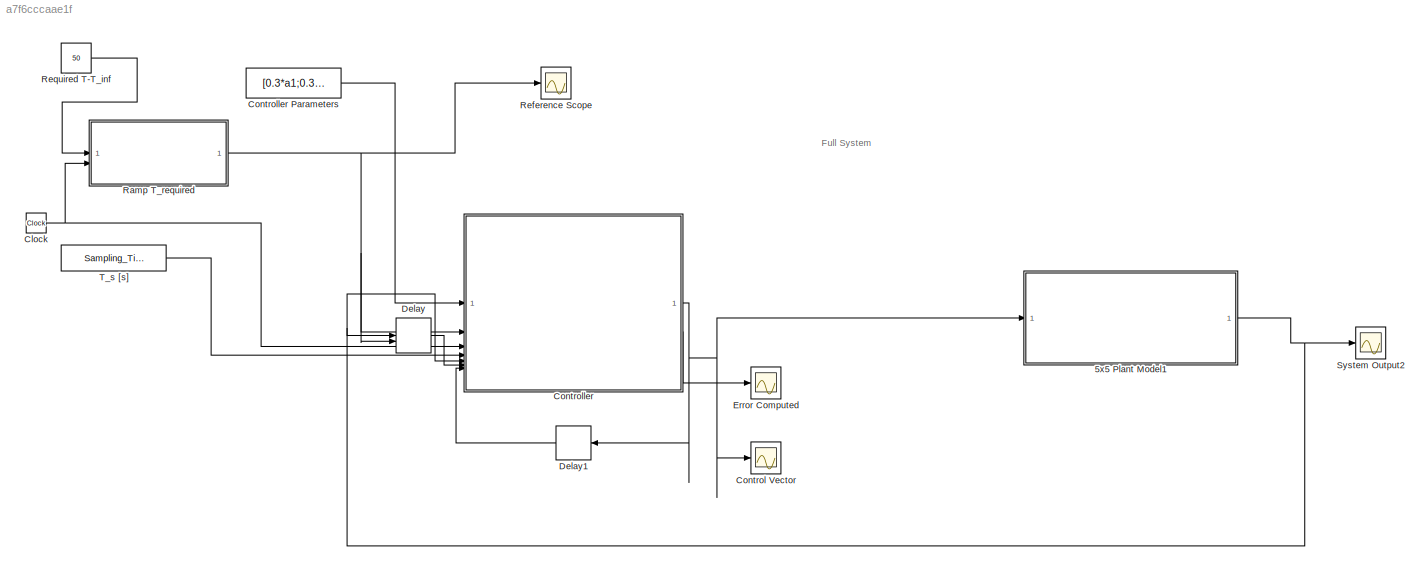
MODEL slx_a7f6cccaae1f
KIND model
CONFIG AbsTol = auto
CONFIG EnableMultiTasking = off
CONFIG FixedStep = auto
CONFIG InitFcn = Sampling_Time = 0.02;\n\n% Find Controller\nA_T= 3.6174;\ntau = 1.2889;\nTs = Sampling_Time;\nKt = A_T * (1-exp(-Ts/tau));\npoles = [-0.9180   -0.7439]; % 2x2\npoles = [-0.5844   -0.9007]; % more aggressive\npoles = [-0.7161   -0.8]; % 0.02 Ts aggro\npoles = [-0.6161   -0.7]; % 0.02 Ts aggro\na1 = (poles(1)+poles(2)+1+exp(-Ts/tau))/Kt;\na0 = (poles(1)*poles(2)-exp(-Ts/tau))/Kt;\na1 = a1(1);\na0 = a0(1);
CONFIG MaxStep = auto
CONFIG MinStep = auto
CONFIG RelTol = 1e-3
CONFIG SampleTimeConstraint = Unconstrained
CONFIG SolverName = VariableStepAuto
CONFIG StartTime = 0.0
CONFIG StopFcn = datloc = out.varout{1}.Values;\n\nt = datloc.Time;\nT = datloc.Data;\nwritematrix([t T], "temp_out.csv");\ncu = out.cuout{1}.Values;\nwritematrix([cu.Time cu.Data], "temp_control.csv");
CONFIG StopTime = 5
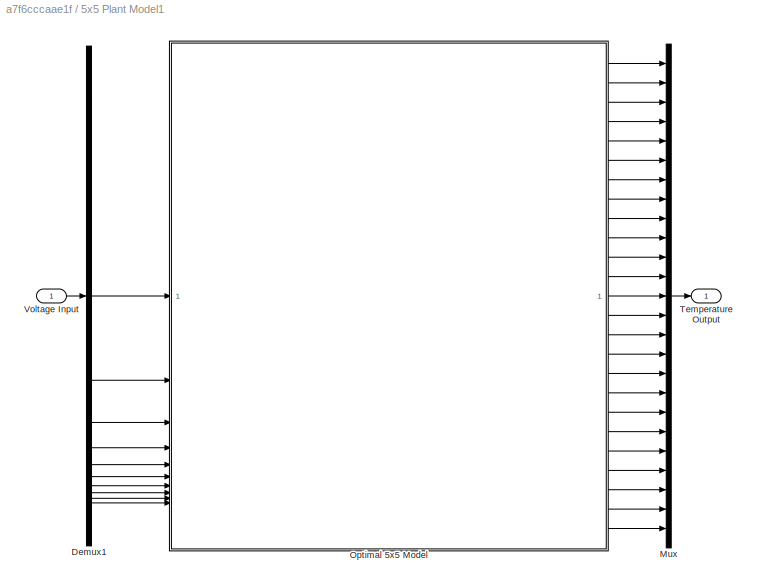
BLOCK [SubSystem] 5x5 Plant Model1
BLOCK [Demux] 5x5 Plant Model1/Demux1
  Outputs = 10
BLOCK [Mux] 5x5 Plant Model1/Mux
  DisplayOption = bar
  Inputs = 25
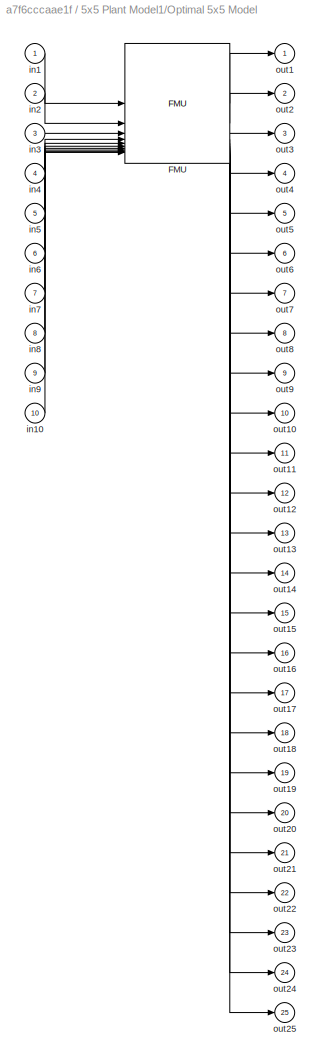
BLOCK [SubSystem] 5x5 Plant Model1/Optimal 5x5 Model
BLOCK [FMU] 5x5 Plant Model1/Optimal 5x5 Model/FMU
  FMUDebugLogging = on
  FMUMode = CoSimulation
  FMUName = 5x5_optimal_77.fmu
  FMUSampleTime = Ts
  MaskDisplay = if (exist([Simulink.fileGenControl('get','CacheFolder') '\slprj\_fmu\8f427680cd09abf412d021646870dffe\5x5_optimal_77\model.png'],'file'))\n    image([Simulink.fileGenControl('get','CacheFolder') '\slprj\_fmu\8f427680cd09abf412d021646870dffe\5x5_optimal_77\model.png']);\nelse\n    disp('Optim_5x5.mph');\nend\nport_label('output',1,'comp1.m11(comp1.T)-293.15');\nport_label('output',2,'comp1.m12(comp1.T)-2...<+1501ch>
  MaskType = Optim_5x5.mph [Co-Simulation, v2.0]
BLOCK [Inport] 5x5 Plant Model1/Optimal 5x5 Model/in1
BLOCK [Inport] 5x5 Plant Model1/Optimal 5x5 Model/in10
  Port = 10
BLOCK [Inport] 5x5 Plant Model1/Optimal 5x5 Model/in2
  Port = 2
BLOCK [Inport] 5x5 Plant Model1/Optimal 5x5 Model/in3
  Port = 3
BLOCK [Inport] 5x5 Plant Model1/Optimal 5x5 Model/in4
  Port = 4
BLOCK [Inport] 5x5 Plant Model1/Optimal 5x5 Model/in5
  Port = 5
BLOCK [Inport] 5x5 Plant Model1/Optimal 5x5 Model/in6
  Port = 6
BLOCK [Inport] 5x5 Plant Model1/Optimal 5x5 Model/in7
  Port = 7
BLOCK [Inport] 5x5 Plant Model1/Optimal 5x5 Model/in8
  Port = 8
BLOCK [Inport] 5x5 Plant Model1/Optimal 5x5 Model/in9
  Port = 9
BLOCK [Outport] 5x5 Plant Model1/Optimal 5x5 Model/out1
BLOCK [Outport] 5x5 Plant Model1/Optimal 5x5 Model/out10
  Port = 10
BLOCK [Outport] 5x5 Plant Model1/Optimal 5x5 Model/out11
  Port = 11
BLOCK [Outport] 5x5 Plant Model1/Optimal 5x5 Model/out12
  Port = 12
BLOCK [Outport] 5x5 Plant Model1/Optimal 5x5 Model/out13
  Port = 13
BLOCK [Outport] 5x5 Plant Model1/Optimal 5x5 Model/out14
  Port = 14
BLOCK [Outport] 5x5 Plant Model1/Optimal 5x5 Model/out15
  Port = 15
BLOCK [Outport] 5x5 Plant Model1/Optimal 5x5 Model/out16
  Port = 16
BLOCK [Outport] 5x5 Plant Model1/Optimal 5x5 Model/out17
  Port = 17
BLOCK [Outport] 5x5 Plant Model1/Optimal 5x5 Model/out18
  Port = 18
BLOCK [Outport] 5x5 Plant Model1/Optimal 5x5 Model/out19
  Port = 19
BLOCK [Outport] 5x5 Plant Model1/Optimal 5x5 Model/out2
  Port = 2
BLOCK [Outport] 5x5 Plant Model1/Optimal 5x5 Model/out20
  Port = 20
BLOCK [Outport] 5x5 Plant Model1/Optimal 5x5 Model/out21
  Port = 21
BLOCK [Outport] 5x5 Plant Model1/Optimal 5x5 Model/out22
  Port = 22
BLOCK [Outport] 5x5 Plant Model1/Optimal 5x5 Model/out23
  Port = 23
BLOCK [Outport] 5x5 Plant Model1/Optimal 5x5 Model/out24
  Port = 24
BLOCK [Outport] 5x5 Plant Model1/Optimal 5x5 Model/out25
  Port = 25
BLOCK [Outport] 5x5 Plant Model1/Optimal 5x5 Model/out3
  Port = 3
BLOCK [Outport] 5x5 Plant Model1/Optimal 5x5 Model/out4
  Port = 4
BLOCK [Outport] 5x5 Plant Model1/Optimal 5x5 Model/out5
  Port = 5
BLOCK [Outport] 5x5 Plant Model1/Optimal 5x5 Model/out6
  Port = 6
BLOCK [Outport] 5x5 Plant Model1/Optimal 5x5 Model/out7
  Port = 7
BLOCK [Outport] 5x5 Plant Model1/Optimal 5x5 Model/out8
  Port = 8
BLOCK [Outport] 5x5 Plant Model1/Optimal 5x5 Model/out9
  Port = 9
BLOCK [Outport] 5x5 Plant Model1/Temperature Output
BLOCK [Inport] 5x5 Plant Model1/Voltage Input
BLOCK [Clock] Clock
BLOCK [Scope] Control Vector
  Floating = off
  NumInputPorts = 1
  ScopeSpecificationString = Simulink.scopes.TimeScopeBlockCfg('CurrentConfiguration', extmgr.ConfigurationSet(extmgr.Configuration('Core','General UI',true),extmgr.Configuration('Core','Source UI',true),extmgr.Configuration('Sources','WiredSimulink',true,'DataLoggingVariableName','cuout','DataLogging',true),extmgr.Configuration('Visuals','Time Domain',true,'SerializedDisplays',{struct('MinYLimReal','-1.19113','MaxYLimReal','...<+1706ch>
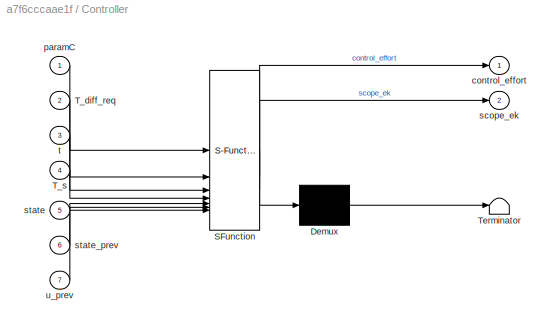
BLOCK [SubSystem] Controller
  ErrorFcn = Stateflow.Translate.translate
  LibrarySourceBlock = simulink/User-Defined\nFunctions/MATLAB Function
  PermitHierarchicalResolution = ExplicitOnly
  SFBlockType = MATLAB Function
  TreatAsAtomicUnit = on
BLOCK [Constant] Controller Parameters
  Value = [0.3*a1;0.3*a0]
BLOCK [Demux] Controller/ Demux 
  Outputs = 1
BLOCK [S-Function] Controller/ SFunction 
  EnableBusSupport = on
  FunctionName = sf_sfun
  PortCounts = [7 3]
  SFcnIsStateOwnerBlock = off
  SFunctionDeploymentMode = off
  Tag = Stateflow S-Function 1
BLOCK [Terminator] Controller/ Terminator 
BLOCK [Inport] Controller/T_diff_req
  Port = 2
BLOCK [Inport] Controller/T_s
  Port = 4
BLOCK [Outport] Controller/control_effort
BLOCK [Inport] Controller/paramC
BLOCK [Outport] Controller/scope_ek
  Port = 2
BLOCK [Inport] Controller/state
  Port = 5
BLOCK [Inport] Controller/state_prev
  Port = 6
BLOCK [Inport] Controller/t
  Port = 3
BLOCK [Inport] Controller/u_prev
  Port = 7
BLOCK [Delay] Delay
  DelayLength = 1
  InitialConditionSource = Input port
  InputPortMap = u0,p4
BLOCK [Delay] Delay1
  DelayLength = 1
  InputPortMap = u0
  NameLocation = top
BLOCK [Scope] Error Computed
  Floating = off
  NumInputPorts = 1
  ScopeSpecificationString = Simulink.scopes.TimeScopeBlockCfg('CurrentConfiguration', extmgr.ConfigurationSet(extmgr.Configuration('Core','General UI',true),extmgr.Configuration('Core','Source UI',true),extmgr.Configuration('Sources','WiredSimulink',true,'DataLoggingVariableName','ScopeData6'),extmgr.Configuration('Visuals','Time Domain',true,'SerializedDisplays',{struct('MinYLimReal','-30.51948','MaxYLimReal','274.67532','Y...<+1463ch>
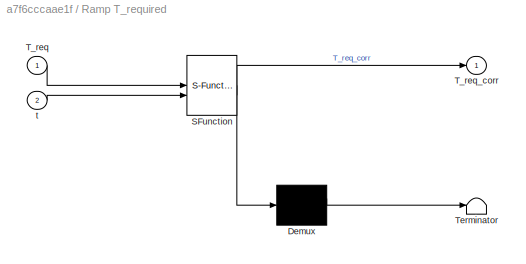
BLOCK [SubSystem] Ramp T_required
  ErrorFcn = Stateflow.Translate.translate
  LibrarySourceBlock = simulink/User-Defined\nFunctions/MATLAB Function
  PermitHierarchicalResolution = ExplicitOnly
  SFBlockType = MATLAB Function
  TreatAsAtomicUnit = on
BLOCK [Demux] Ramp T_required/ Demux 
  Outputs = 1
BLOCK [S-Function] Ramp T_required/ SFunction 
  EnableBusSupport = on
  FunctionName = sf_sfun
  PortCounts = [2 2]
  SFcnIsStateOwnerBlock = off
  SFunctionDeploymentMode = off
  Tag = Stateflow S-Function 4
BLOCK [Terminator] Ramp T_required/ Terminator 
BLOCK [Inport] Ramp T_required/T_req
BLOCK [Outport] Ramp T_required/T_req_corr
BLOCK [Inport] Ramp T_required/t
  Port = 2
BLOCK [Scope] Reference Scope
  Floating = off
  NumInputPorts = 1
  ScopeSpecificationString = Simulink.scopes.TimeScopeBlockCfg('CurrentConfiguration', extmgr.ConfigurationSet(extmgr.Configuration('Core','General UI',true),extmgr.Configuration('Core','Source UI',true),extmgr.Configuration('Sources','WiredSimulink',true,'DataLoggingVariableName','ScopeData1'),extmgr.Configuration('Visuals','Time Domain',true,'SerializedDisplays',{struct('MinYLimReal','-4.375','MaxYLimReal','39.375','YLabelR...<+1366ch>
BLOCK [Constant] Required T-T_inf
  Value = 50
BLOCK [Scope] System Output2
  Floating = off
  NumInputPorts = 1
  ScopeSpecificationString = Simulink.scopes.TimeScopeBlockCfg('CurrentConfiguration', extmgr.ConfigurationSet(extmgr.Configuration('Core','General UI',true),extmgr.Configuration('Core','Source UI',true),extmgr.Configuration('Sources','WiredSimulink',true,'DataLoggingVariableName','varout','DataLogging',true),extmgr.Configuration('Visuals','Time Domain',true,'SerializedDisplays',{struct('MinYLimReal','-6.82939','MaxYLimReal',...<+2015ch>
BLOCK [Constant] T_s [s]
  Value = Sampling_Time
ANNOTATION (root): Full System
LINE 5x5 Plant Model1/Demux1:1 -> 5x5 Plant Model1/Optimal 5x5 Model:1
LINE 5x5 Plant Model1/Demux1:10 -> 5x5 Plant Model1/Optimal 5x5 Model:10
LINE 5x5 Plant Model1/Demux1:2 -> 5x5 Plant Model1/Optimal 5x5 Model:2
LINE 5x5 Plant Model1/Demux1:3 -> 5x5 Plant Model1/Optimal 5x5 Model:3
LINE 5x5 Plant Model1/Demux1:4 -> 5x5 Plant Model1/Optimal 5x5 Model:4
LINE 5x5 Plant Model1/Demux1:5 -> 5x5 Plant Model1/Optimal 5x5 Model:5
LINE 5x5 Plant Model1/Demux1:6 -> 5x5 Plant Model1/Optimal 5x5 Model:6
LINE 5x5 Plant Model1/Demux1:7 -> 5x5 Plant Model1/Optimal 5x5 Model:7
LINE 5x5 Plant Model1/Demux1:8 -> 5x5 Plant Model1/Optimal 5x5 Model:8
LINE 5x5 Plant Model1/Demux1:9 -> 5x5 Plant Model1/Optimal 5x5 Model:9
LINE 5x5 Plant Model1/Mux:1 -> 5x5 Plant Model1/Temperature Output:1
LINE 5x5 Plant Model1/Optimal 5x5 Model/FMU:1 -> 5x5 Plant Model1/Optimal 5x5 Model/out1:1
LINE 5x5 Plant Model1/Optimal 5x5 Model/FMU:10 -> 5x5 Plant Model1/Optimal 5x5 Model/out10:1
LINE 5x5 Plant Model1/Optimal 5x5 Model/FMU:11 -> 5x5 Plant Model1/Optimal 5x5 Model/out11:1
LINE 5x5 Plant Model1/Optimal 5x5 Model/FMU:12 -> 5x5 Plant Model1/Optimal 5x5 Model/out12:1
LINE 5x5 Plant Model1/Optimal 5x5 Model/FMU:13 -> 5x5 Plant Model1/Optimal 5x5 Model/out13:1
LINE 5x5 Plant Model1/Optimal 5x5 Model/FMU:14 -> 5x5 Plant Model1/Optimal 5x5 Model/out14:1
LINE 5x5 Plant Model1/Optimal 5x5 Model/FMU:15 -> 5x5 Plant Model1/Optimal 5x5 Model/out15:1
LINE 5x5 Plant Model1/Optimal 5x5 Model/FMU:16 -> 5x5 Plant Model1/Optimal 5x5 Model/out16:1
LINE 5x5 Plant Model1/Optimal 5x5 Model/FMU:17 -> 5x5 Plant Model1/Optimal 5x5 Model/out17:1
LINE 5x5 Plant Model1/Optimal 5x5 Model/FMU:18 -> 5x5 Plant Model1/Optimal 5x5 Model/out18:1
LINE 5x5 Plant Model1/Optimal 5x5 Model/FMU:19 -> 5x5 Plant Model1/Optimal 5x5 Model/out19:1
LINE 5x5 Plant Model1/Optimal 5x5 Model/FMU:2 -> 5x5 Plant Model1/Optimal 5x5 Model/out2:1
LINE 5x5 Plant Model1/Optimal 5x5 Model/FMU:20 -> 5x5 Plant Model1/Optimal 5x5 Model/out20:1
LINE 5x5 Plant Model1/Optimal 5x5 Model/FMU:21 -> 5x5 Plant Model1/Optimal 5x5 Model/out21:1
LINE 5x5 Plant Model1/Optimal 5x5 Model/FMU:22 -> 5x5 Plant Model1/Optimal 5x5 Model/out22:1
LINE 5x5 Plant Model1/Optimal 5x5 Model/FMU:23 -> 5x5 Plant Model1/Optimal 5x5 Model/out23:1
LINE 5x5 Plant Model1/Optimal 5x5 Model/FMU:24 -> 5x5 Plant Model1/Optimal 5x5 Model/out24:1
LINE 5x5 Plant Model1/Optimal 5x5 Model/FMU:25 -> 5x5 Plant Model1/Optimal 5x5 Model/out25:1
LINE 5x5 Plant Model1/Optimal 5x5 Model/FMU:3 -> 5x5 Plant Model1/Optimal 5x5 Model/out3:1
LINE 5x5 Plant Model1/Optimal 5x5 Model/FMU:4 -> 5x5 Plant Model1/Optimal 5x5 Model/out4:1
LINE 5x5 Plant Model1/Optimal 5x5 Model/FMU:5 -> 5x5 Plant Model1/Optimal 5x5 Model/out5:1
LINE 5x5 Plant Model1/Optimal 5x5 Model/FMU:6 -> 5x5 Plant Model1/Optimal 5x5 Model/out6:1
LINE 5x5 Plant Model1/Optimal 5x5 Model/FMU:7 -> 5x5 Plant Model1/Optimal 5x5 Model/out7:1
LINE 5x5 Plant Model1/Optimal 5x5 Model/FMU:8 -> 5x5 Plant Model1/Optimal 5x5 Model/out8:1
LINE 5x5 Plant Model1/Optimal 5x5 Model/FMU:9 -> 5x5 Plant Model1/Optimal 5x5 Model/out9:1
LINE 5x5 Plant Model1/Optimal 5x5 Model/in10:1 -> 5x5 Plant Model1/Optimal 5x5 Model/FMU:10
LINE 5x5 Plant Model1/Optimal 5x5 Model/in1:1 -> 5x5 Plant Model1/Optimal 5x5 Model/FMU:1
LINE 5x5 Plant Model1/Optimal 5x5 Model/in2:1 -> 5x5 Plant Model1/Optimal 5x5 Model/FMU:2
LINE 5x5 Plant Model1/Optimal 5x5 Model/in3:1 -> 5x5 Plant Model1/Optimal 5x5 Model/FMU:3
LINE 5x5 Plant Model1/Optimal 5x5 Model/in4:1 -> 5x5 Plant Model1/Optimal 5x5 Model/FMU:4
LINE 5x5 Plant Model1/Optimal 5x5 Model/in5:1 -> 5x5 Plant Model1/Optimal 5x5 Model/FMU:5
LINE 5x5 Plant Model1/Optimal 5x5 Model/in6:1 -> 5x5 Plant Model1/Optimal 5x5 Model/FMU:6
LINE 5x5 Plant Model1/Optimal 5x5 Model/in7:1 -> 5x5 Plant Model1/Optimal 5x5 Model/FMU:7
LINE 5x5 Plant Model1/Optimal 5x5 Model/in8:1 -> 5x5 Plant Model1/Optimal 5x5 Model/FMU:8
LINE 5x5 Plant Model1/Optimal 5x5 Model/in9:1 -> 5x5 Plant Model1/Optimal 5x5 Model/FMU:9
LINE 5x5 Plant Model1/Optimal 5x5 Model:1 -> 5x5 Plant Model1/Mux:1
LINE 5x5 Plant Model1/Optimal 5x5 Model:10 -> 5x5 Plant Model1/Mux:10
LINE 5x5 Plant Model1/Optimal 5x5 Model:11 -> 5x5 Plant Model1/Mux:11
LINE 5x5 Plant Model1/Optimal 5x5 Model:12 -> 5x5 Plant Model1/Mux:12
LINE 5x5 Plant Model1/Optimal 5x5 Model:13 -> 5x5 Plant Model1/Mux:13
LINE 5x5 Plant Model1/Optimal 5x5 Model:14 -> 5x5 Plant Model1/Mux:14
LINE 5x5 Plant Model1/Optimal 5x5 Model:15 -> 5x5 Plant Model1/Mux:15
LINE 5x5 Plant Model1/Optimal 5x5 Model:16 -> 5x5 Plant Model1/Mux:16
LINE 5x5 Plant Model1/Optimal 5x5 Model:17 -> 5x5 Plant Model1/Mux:17
LINE 5x5 Plant Model1/Optimal 5x5 Model:18 -> 5x5 Plant Model1/Mux:18
LINE 5x5 Plant Model1/Optimal 5x5 Model:19 -> 5x5 Plant Model1/Mux:19
LINE 5x5 Plant Model1/Optimal 5x5 Model:2 -> 5x5 Plant Model1/Mux:2
LINE 5x5 Plant Model1/Optimal 5x5 Model:20 -> 5x5 Plant Model1/Mux:20
LINE 5x5 Plant Model1/Optimal 5x5 Model:21 -> 5x5 Plant Model1/Mux:21
LINE 5x5 Plant Model1/Optimal 5x5 Model:22 -> 5x5 Plant Model1/Mux:22
LINE 5x5 Plant Model1/Optimal 5x5 Model:23 -> 5x5 Plant Model1/Mux:23
LINE 5x5 Plant Model1/Optimal 5x5 Model:24 -> 5x5 Plant Model1/Mux:24
LINE 5x5 Plant Model1/Optimal 5x5 Model:25 -> 5x5 Plant Model1/Mux:25
LINE 5x5 Plant Model1/Optimal 5x5 Model:3 -> 5x5 Plant Model1/Mux:3
LINE 5x5 Plant Model1/Optimal 5x5 Model:4 -> 5x5 Plant Model1/Mux:4
LINE 5x5 Plant Model1/Optimal 5x5 Model:5 -> 5x5 Plant Model1/Mux:5
LINE 5x5 Plant Model1/Optimal 5x5 Model:6 -> 5x5 Plant Model1/Mux:6
LINE 5x5 Plant Model1/Optimal 5x5 Model:7 -> 5x5 Plant Model1/Mux:7
LINE 5x5 Plant Model1/Optimal 5x5 Model:8 -> 5x5 Plant Model1/Mux:8
LINE 5x5 Plant Model1/Optimal 5x5 Model:9 -> 5x5 Plant Model1/Mux:9
LINE 5x5 Plant Model1/Voltage Input:1 -> 5x5 Plant Model1/Demux1:1
NET 5x5 Plant Model1:1 -> Controller:5, Delay:1, System Output2:1
NET Clock:1 -> Controller:3, Ramp T_required:2
LINE Controller Parameters:1 -> Controller:1
NET Controller:1 -> 5x5 Plant Model1:1, Control Vector:1, Delay1:1
LINE Controller:2 -> Error Computed:1
LINE Delay1:1 -> Controller:7
LINE Delay:1 -> Controller:6
NET Ramp T_required:1 -> Controller:2, Delay:2, Reference Scope:1
LINE Required T-T_inf:1 -> Ramp T_required:1
LINE T_s [s]:1 -> Controller:4
note: NET lines group one-source signal fan-out (src -> all destinations, sorted); 1:1 wires keep LINE
CHART Controller states=1 transitions=1
  STATE_LABEL 'eML_blk_kernel()'
  STATE_LABEL 'SCRIPT:\nfunction [control_effort, scope_ek] = Base_Controller(paramC, T_diff_req, t, T_s, state, state_prev, u_prev)\n\n% control_effort = zeros(4,1);\nk = floor(t/T_s);\n\ncn = mod(k,5)+1;\n\n% % Well Shape Input\n% input_filter_sel = [0 1 1 1 0 0 1 1 1 0;\n%                     0 0.5 0.5 0.5 0.5, 0.5 0.5 0.5 0.5 1;\n%                     0 0.5 0.5 0.5 0.5, 1 0.5 0.5 0.5 0.5;\n%                     0.5 0.5 ...<+2232ch>'
CHART Ramp T_required states=1 transitions=1
  STATE_LABEL 'eML_blk_kernel()'
  STATE_LABEL 'SCRIPT:\nfunction T_req_corr = Ramp_Generator(T_req, t)\n\ntT = 2;\n\nT_req_corr = (T_req/tT)*t;\nif t >= tT\n    T_req_corr = T_req;\nend\n\nend'
CHART  states=0 transitions=0
CHART  states=0 transitions=0
